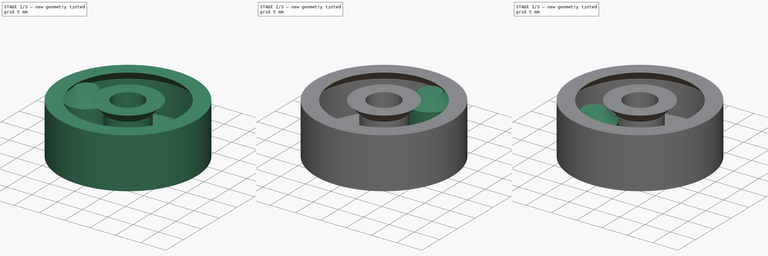
[diagram: build sequence overview — one tinted view per stage of 3, left to right]
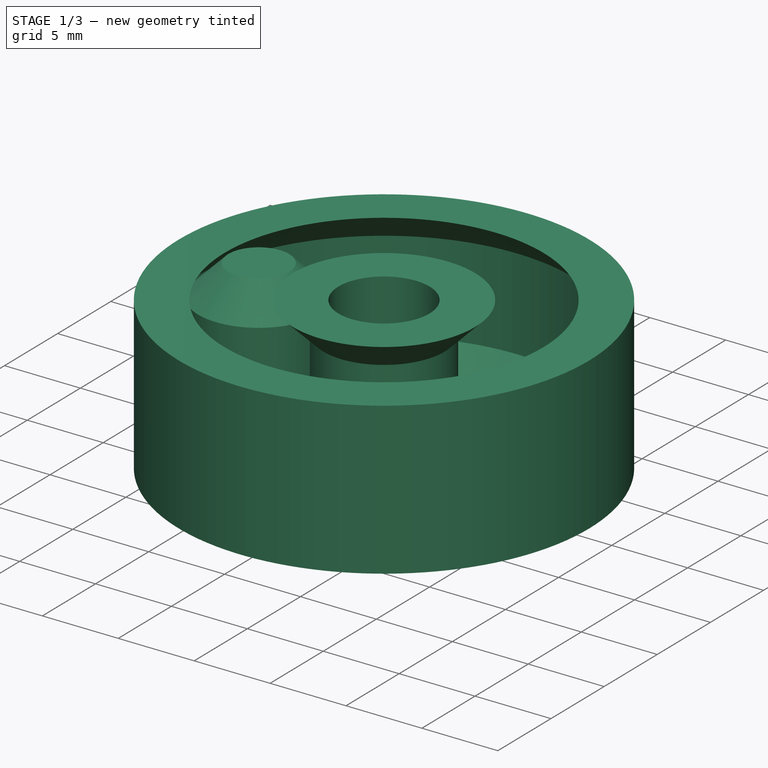
[diagram: stage 1 of 3 — iso view after this stage's code; geometry added in this stage tinted green]
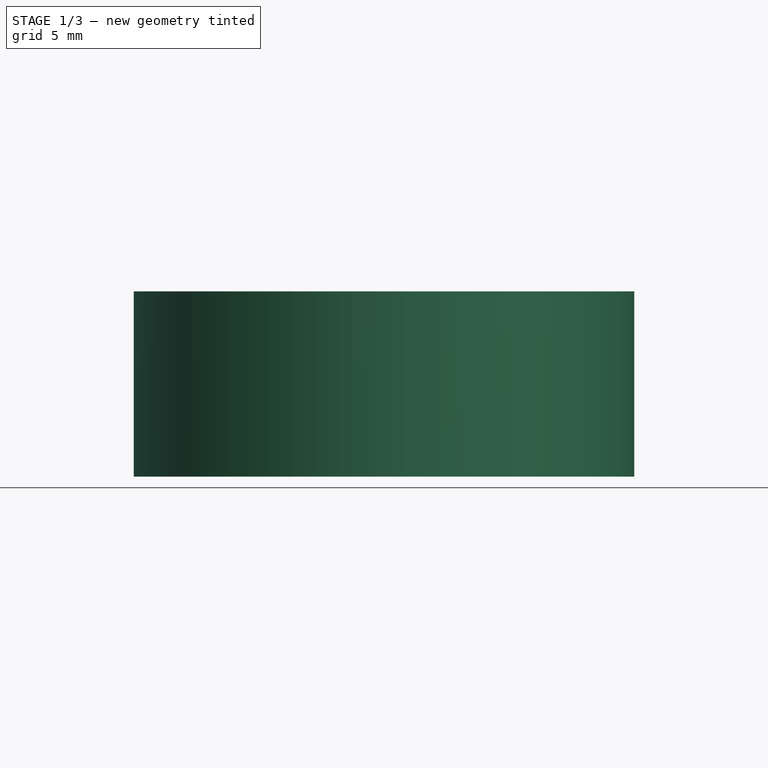
[diagram: stage 1 of 3 — front view after this stage's code; geometry added in this stage tinted green]
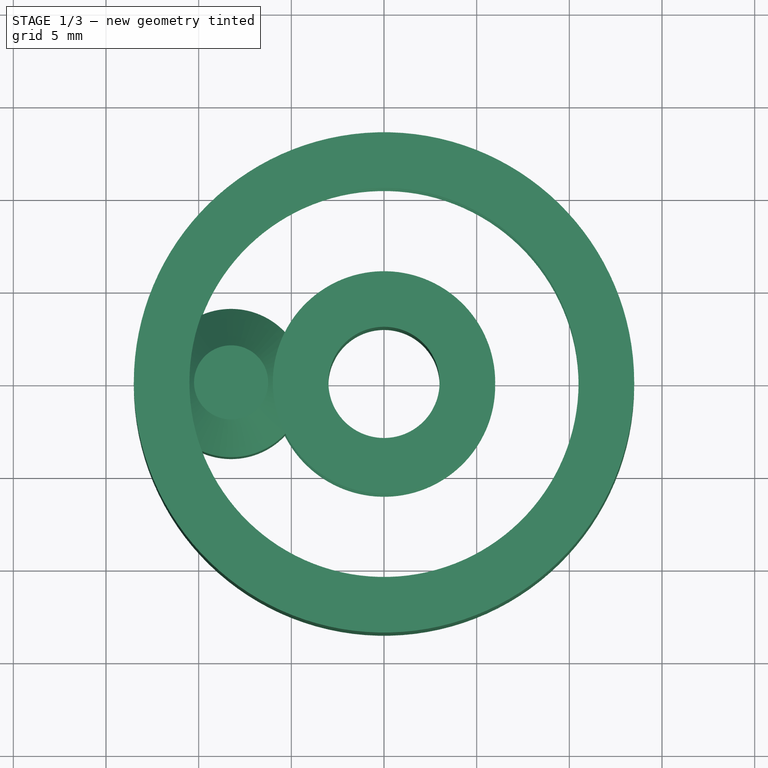
[diagram: stage 1 of 3 — top view after this stage's code; geometry added in this stage tinted green]
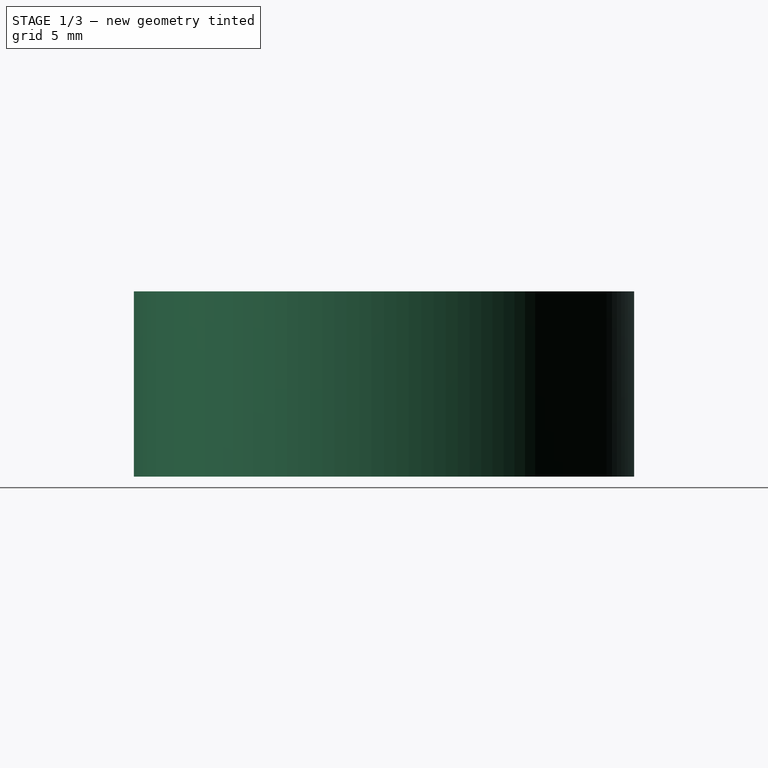
[diagram: stage 1 of 3 — right view after this stage's code; geometry added in this stage tinted green]
FCSTD DOCUMENT  (FreeCAD 0.19R22198 (Git))
Label: Bearing3
License: All rights reserved
LicenseURL: http://en.wikipedia.org/wiki/All_rights_reserved
objects: Part::FeaturePython×5, Sketcher::SketchObject×3, Part::Revolution×3
note: 11 computed .brp shape members not serialized (recipe doc carries the construction recipe); baked Part::Feature solids carry a one-line shape summary decoded from their .brp

FEATURE [Sketcher::SketchObject] Sketch  label="Sketch_OuterRim"
  Placement = pos=(-8.25,0,0) rot=(1,0,0;1.5708rad)
  sketch-geometry (21):
    g0: LineSegment [constr] StartX=0 StartY=5 StartZ=0 EndX=-2 EndY=5 EndZ=0
    g1: LineSegment [constr] StartX=-2 StartY=5 StartZ=0 EndX=-4 EndY=3 EndZ=0
    g2: LineSegment [constr] StartX=-4 StartY=3 StartZ=0 EndX=-4 EndY=-3 EndZ=0
    g3: LineSegment [constr] StartX=-4 StartY=-3 StartZ=0 EndX=-2 EndY=-5 EndZ=0
    g4: LineSegment [constr] StartX=-2 StartY=-5 StartZ=0 EndX=0 EndY=-5 EndZ=0
    g5: LineSegment [constr] StartX=0 StartY=-5 StartZ=0 EndX=0 EndY=5 EndZ=0
    g6: LineSegment StartX=-2.25 StartY=5 StartZ=0 EndX=-4.25 EndY=3 EndZ=0
    g7: LineSegment StartX=-4.25 StartY=3 StartZ=0 EndX=-4.25 EndY=-3 EndZ=0
    g8: LineSegment StartX=-4.25 StartY=-3 StartZ=0 EndX=-2.25 EndY=-5 EndZ=0
    g9: LineSegment StartX=-2.25 StartY=-5 StartZ=0 EndX=-5.25 EndY=-5 EndZ=0
    g10: LineSegment StartX=-5.25 StartY=-5 StartZ=0 EndX=-5.25 EndY=5 EndZ=0
    g11: LineSegment StartX=-5.25 StartY=5 StartZ=0 EndX=-2.25 EndY=5 EndZ=0
    g12: LineSegment [constr] StartX=-20.6299 StartY=5 StartZ=0 EndX=4.28967 EndY=5 EndZ=0
    g13: LineSegment [constr] StartX=-20.9449 StartY=3 StartZ=0 EndX=4.36043 EndY=3 EndZ=0
    g14: LineSegment [constr] StartX=-21.2598 StartY=-5 StartZ=0 EndX=4.56693 EndY=-5 EndZ=0
    g15: LineSegment [constr] StartX=-20.465 StartY=-3 StartZ=0 EndX=4.24868 EndY=-3 EndZ=0
    g16: LineSegment [constr] StartX=-2 StartY=5.74327 StartZ=0 EndX=-2 EndY=-9.43483 EndZ=0
    g17: LineSegment [constr] StartX=-4 StartY=5.8012 StartZ=0 EndX=-4 EndY=-9.99999 EndZ=0
    g18: LineSegment [constr] StartX=-4.25 StartY=5.77485 StartZ=0 EndX=-4.25 EndY=-8.41894 EndZ=0
    g19: LineSegment [constr] StartX=-2.25 StartY=5.80513 StartZ=0 EndX=-2.25 EndY=-7.81692 EndZ=0
    g20: LineSegment [constr] StartX=-5.25 StartY=6.2109 StartZ=0 EndX=-5.25 EndY=-6.55956 EndZ=0
  constraints (54):
    c: PointOnObject(g0,g-2)
    c: Horizontal(g0)
    c: Coincident(g0,g1)
    c: Coincident(g1,g2)
    c: Vertical(g2)
    c: Coincident(g2,g3)
    c: Coincident(g3,g4)
    c: Horizontal(g4)
    c: Coincident(g4,g5)
    c: Coincident(g5,g0)
    c: Vertical(g5)
    c: Coincident(g6,g7)
    c: Vertical(g7)
    c: Coincident(g7,g8)
    c: Coincident(g8,g9)
    c: Horizontal(g9)
    c: Coincident(g9,g10)
    c: Vertical(g10)
    c: Coincident(g10,g11)
    c: Coincident(g11,g6)
    c: Horizontal(g12)
    c: Horizontal(g13)
    c: Horizontal(g14)
    c: Horizontal(g15)
    c: Vertical(g16)
    c: Vertical(g17)
    c: Vertical(g18)
    c: Vertical(g19)
    c: Vertical(g20)
    c: DistanceX(g-2,g16) = -2
    c: DistanceX(g-2,g17) = -4
    c: DistanceY(g-1,g13) = 3
    c: DistanceY(g-1,g12) = 5
    c: Distance(g19,g16) = 0.25
    c: DistanceY(g-1,g15) = -3
    c: DistanceY(g-1,g14) = -5
    c: Distance(g18,g17) = 0.25
    c: Distance(g20,g18) = 1
    c: Horizontal(g11)
    c: PointOnObject(g3,g14)
    c: PointOnObject(g3,g16)
    c: PointOnObject(g8,g19)
    c: PointOnObject(g8,g14)
    c: PointOnObject(g9,g20)
    c: PointOnObject(g2,g15)
    c: PointOnObject(g2,g17)
    c: PointOnObject(g7,g15)
    c: PointOnObject(g7,g18)
    c: PointOnObject(g6,g13)
    c: PointOnObject(g1,g13)
    c: PointOnObject(g0,g16)
    c: PointOnObject(g0,g12)
    c: PointOnObject(g6,g19)
    c: PointOnObject(g6,g12)
FEATURE [Sketcher::SketchObject] Sketch001  label="Sketch_Bearing"
  Placement = pos=(0,0,0) rot=(1,0,0;1.5708rad)
  sketch-geometry (21):
    g0: LineSegment StartX=0 StartY=5 StartZ=0 EndX=-2 EndY=5 EndZ=0
    g1: LineSegment StartX=-2 StartY=5 StartZ=0 EndX=-4 EndY=3 EndZ=0
    g2: LineSegment StartX=-4 StartY=3 StartZ=0 EndX=-4 EndY=-3 EndZ=0
    g3: LineSegment StartX=-4 StartY=-3 StartZ=0 EndX=-2 EndY=-5 EndZ=0
    g4: LineSegment StartX=-2 StartY=-5 StartZ=0 EndX=0 EndY=-5 EndZ=0
    g5: LineSegment StartX=0 StartY=-5 StartZ=0 EndX=0 EndY=5 EndZ=0
    g6: LineSegment [constr] StartX=-2.25 StartY=5 StartZ=0 EndX=-4.25 EndY=3 EndZ=0
    g7: LineSegment [constr] StartX=-4.25 StartY=3 StartZ=0 EndX=-4.25 EndY=-3 EndZ=0
    g8: LineSegment [constr] StartX=-4.25 StartY=-3 StartZ=0 EndX=-2.25 EndY=-5 EndZ=0
    g9: LineSegment [constr] StartX=-2.25 StartY=-5 StartZ=0 EndX=-5.25 EndY=-5 EndZ=0
    g10: LineSegment [constr] StartX=-5.25 StartY=-5 StartZ=0 EndX=-5.25 EndY=5 EndZ=0
    g11: LineSegment [constr] StartX=-5.25 StartY=5 StartZ=0 EndX=-2.25 EndY=5 EndZ=0
    g12: LineSegment [constr] StartX=-20.6299 StartY=5 StartZ=0 EndX=4.28967 EndY=5 EndZ=0
    g13: LineSegment [constr] StartX=-20.9449 StartY=3 StartZ=0 EndX=4.36043 EndY=3 EndZ=0
    g14: LineSegment [constr] StartX=-21.2598 StartY=-5 StartZ=0 EndX=4.56693 EndY=-5 EndZ=0
    g15: LineSegment [constr] StartX=-20.465 StartY=-3 StartZ=0 EndX=4.24868 EndY=-3 EndZ=0
    g16: LineSegment [constr] StartX=-2 StartY=5.74327 StartZ=0 EndX=-2 EndY=-9.43483 EndZ=0
    g17: LineSegment [constr] StartX=-4 StartY=5.8012 StartZ=0 EndX=-4 EndY=-9.99999 EndZ=0
    g18: LineSegment [constr] StartX=-4.25 StartY=5.77485 StartZ=0 EndX=-4.25 EndY=-8.41894 EndZ=0
    g19: LineSegment [constr] StartX=-2.25 StartY=5.80513 StartZ=0 EndX=-2.25 EndY=-7.81692 EndZ=0
    g20: LineSegment [constr] StartX=-5.25 StartY=6.2109 StartZ=0 EndX=-5.25 EndY=-6.55956 EndZ=0
  constraints (54):
    c: PointOnObject(g0,g-2)
    c: Horizontal(g0)
    c: Coincident(g0,g1)
    c: Coincident(g1,g2)
    c: Vertical(g2)
    c: Coincident(g2,g3)
    c: Coincident(g3,g4)
    c: Horizontal(g4)
    c: Coincident(g4,g5)
    c: Coincident(g5,g0)
    c: Vertical(g5)
    c: Coincident(g6,g7)
    c: Vertical(g7)
    c: Coincident(g7,g8)
    c: Coincident(g8,g9)
    c: Horizontal(g9)
    c: Coincident(g9,g10)
    c: Vertical(g10)
    c: Coincident(g10,g11)
    c: Coincident(g11,g6)
    c: Horizontal(g12)
    c: Horizontal(g13)
    c: Horizontal(g14)
    c: Horizontal(g15)
    c: Vertical(g16)
    c: Vertical(g17)
    c: Vertical(g18)
    c: Vertical(g19)
    c: Vertical(g20)
    c: DistanceX(g-2,g16) = -2
    c: DistanceX(g-2,g17) = -4
    c: DistanceY(g-1,g13) = 3
    c: DistanceY(g-1,g12) = 5
    c: Distance(g19,g16) = 0.25
    c: DistanceY(g-1,g15) = -3
    c: DistanceY(g-1,g14) = -5
    c: Distance(g18,g17) = 0.25
    c: Distance(g20,g18) = 1
    c: Horizontal(g11)
    c: PointOnObject(g3,g14)
    c: PointOnObject(g3,g16)
    c: PointOnObject(g8,g19)
    c: PointOnObject(g8,g14)
    c: PointOnObject(g9,g20)
    c: PointOnObject(g2,g15)
    c: PointOnObject(g2,g17)
    c: PointOnObject(g7,g15)
    c: PointOnObject(g7,g18)
    c: PointOnObject(g6,g13)
    c: PointOnObject(g1,g13)
    c: PointOnObject(g0,g16)
    c: PointOnObject(g0,g12)
    c: PointOnObject(g6,g19)
    c: PointOnObject(g6,g12)
FEATURE [Sketcher::SketchObject] MirroredSketch  label="Sketch_InnerRim"
  Placement = pos=(-8.25,0,0) rot=(1,0,0;1.5708rad)
  sketch-geometry (21):
    g0: LineSegment [constr] StartX=0 StartY=-5 StartZ=0 EndX=2 EndY=-5 EndZ=0
    g1: LineSegment [constr] StartX=2 StartY=-5 StartZ=0 EndX=4 EndY=-3 EndZ=0
    g2: LineSegment [constr] StartX=4 StartY=-3 StartZ=0 EndX=4 EndY=3 EndZ=0
    g3: LineSegment [constr] StartX=4 StartY=3 StartZ=0 EndX=2 EndY=5 EndZ=0
    g4: LineSegment [constr] StartX=2 StartY=5 StartZ=0 EndX=0 EndY=5 EndZ=0
    g5: LineSegment [constr] StartX=0 StartY=5 StartZ=0 EndX=0 EndY=-5 EndZ=0
    g6: LineSegment StartX=2.25 StartY=-5 StartZ=0 EndX=4.25 EndY=-3 EndZ=0
    g7: LineSegment StartX=4.25 StartY=-3 StartZ=0 EndX=4.25 EndY=3 EndZ=0
    g8: LineSegment StartX=4.25 StartY=3 StartZ=0 EndX=2.25 EndY=5 EndZ=0
    g9: LineSegment StartX=2.25 StartY=5 StartZ=0 EndX=5.25 EndY=5 EndZ=0
    g10: LineSegment StartX=5.25 StartY=5 StartZ=0 EndX=5.25 EndY=-5 EndZ=0
    g11: LineSegment StartX=5.25 StartY=-5 StartZ=0 EndX=2.25 EndY=-5 EndZ=0
    g12: LineSegment [constr] StartX=20.6299 StartY=-5 StartZ=0 EndX=-4.28967 EndY=-5 EndZ=0
    g13: LineSegment [constr] StartX=20.9449 StartY=-3 StartZ=0 EndX=-4.36043 EndY=-3 EndZ=0
    g14: LineSegment [constr] StartX=21.2598 StartY=5 StartZ=0 EndX=-4.56693 EndY=5 EndZ=0
    g15: LineSegment [constr] StartX=20.465 StartY=3 StartZ=0 EndX=-4.24868 EndY=3 EndZ=0
    g16: LineSegment [constr] StartX=2 StartY=-5.74327 StartZ=0 EndX=2 EndY=9.43483 EndZ=0
    g17: LineSegment [constr] StartX=4 StartY=-5.8012 StartZ=0 EndX=4 EndY=9.99999 EndZ=0
    g18: LineSegment [constr] StartX=4.25 StartY=-5.77485 StartZ=0 EndX=4.25 EndY=8.41894 EndZ=0
    g19: LineSegment [constr] StartX=2.25 StartY=-5.80513 StartZ=0 EndX=2.25 EndY=7.81692 EndZ=0
    g20: LineSegment [constr] StartX=5.25 StartY=-6.2109 StartZ=0 EndX=5.25 EndY=6.55956 EndZ=0
  constraints (47):
    c: Horizontal(g0)
    c: Coincident(g0,g1)
    c: Coincident(g1,g2)
    c: Vertical(g2)
    c: Coincident(g2,g3)
    c: Coincident(g3,g4)
    c: Horizontal(g4)
    c: Coincident(g4,g5)
    c: Coincident(g5,g0)
    c: Vertical(g5)
    c: Coincident(g6,g7)
    c: Vertical(g7)
    c: Coincident(g7,g8)
    c: Coincident(g8,g9)
    c: Horizontal(g9)
    c: Coincident(g9,g10)
    c: Vertical(g10)
    c: Coincident(g10,g11)
    c: Coincident(g11,g6)
    c: Horizontal(g12)
    c: Horizontal(g13)
    c: Horizontal(g14)
    c: Horizontal(g15)
    c: Vertical(g16)
    c: Vertical(g17)
    c: Vertical(g18)
    c: Vertical(g19)
    c: Vertical(g20)
    c: Distance(g19,g16) = 0.25
    c: Distance(g18,g17) = 0.25
    c: Distance(g20,g18) = 1
    c: Horizontal(g11)
    c: PointOnObject(g3,g14)
    c: PointOnObject(g3,g16)
    c: PointOnObject(g8,g19)
    c: PointOnObject(g8,g14)
    c: PointOnObject(g9,g20)
    c: PointOnObject(g2,g15)
    c: PointOnObject(g2,g17)
    c: PointOnObject(g7,g15)
    c: PointOnObject(g7,g18)
    c: PointOnObject(g6,g13)
    c: PointOnObject(g1,g13)
    c: PointOnObject(g0,g16)
    c: PointOnObject(g0,g12)
    c: PointOnObject(g6,g19)
    c: PointOnObject(g6,g12)
FEATURE [Part::Revolution] Revolve
  Angle = 360
  Axis = (0,0,1)
  Base = (0,0,0)
  FaceMakerClass = Part::FaceMakerBullseye
  Placement = pos=(-8.25,0,0) rot=(0,0,1;0rad)
  Solid = true
  Source = -> Sketch001
  Symmetric = false
FEATURE [Part::Revolution] Revolve001  label="Revolve006"
  Angle = 360
  Axis = (0,0,1)
  Base = (0,0,0)
  FaceMakerClass = Part::FaceMakerBullseye
  Solid = true
  Source = -> Sketch
  Symmetric = false
FEATURE [Part::Revolution] Revolve002  label="Revolve007"
  Angle = 360
  Axis = (0,0,1)
  Base = (0,0,0)
  FaceMakerClass = Part::FaceMakerBullseye
  Solid = true
  Source = -> MirroredSketch
  Symmetric = false
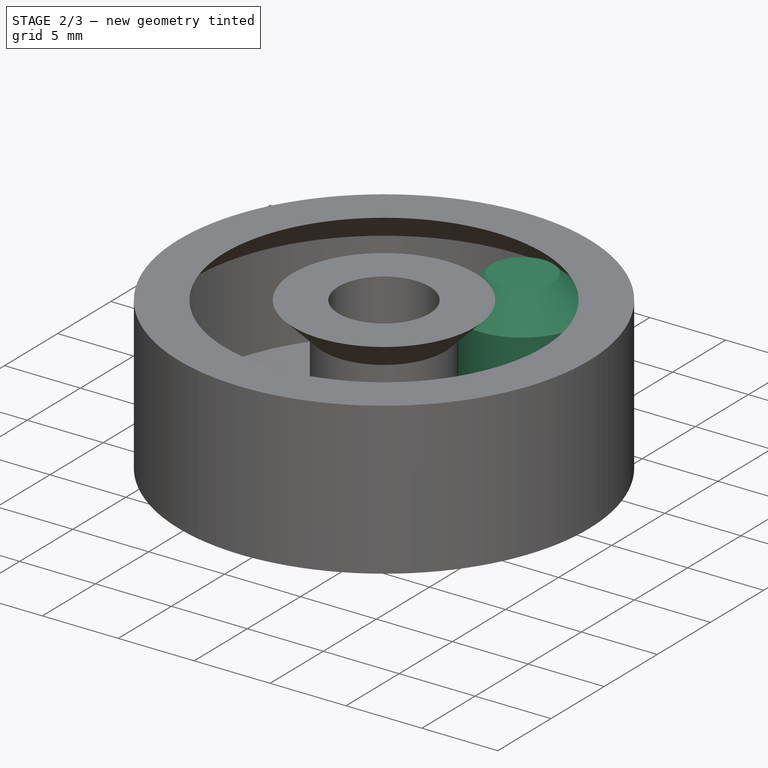
[diagram: stage 2 of 3 — iso view after this stage's code; geometry added in this stage tinted green]
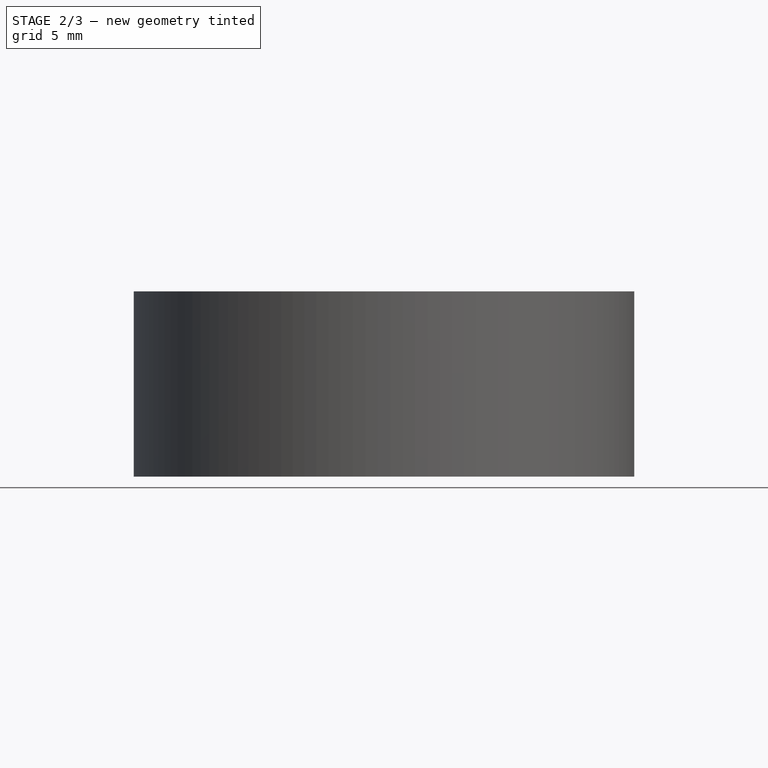
[diagram: stage 2 of 3 — front view after this stage's code; geometry added in this stage tinted green]
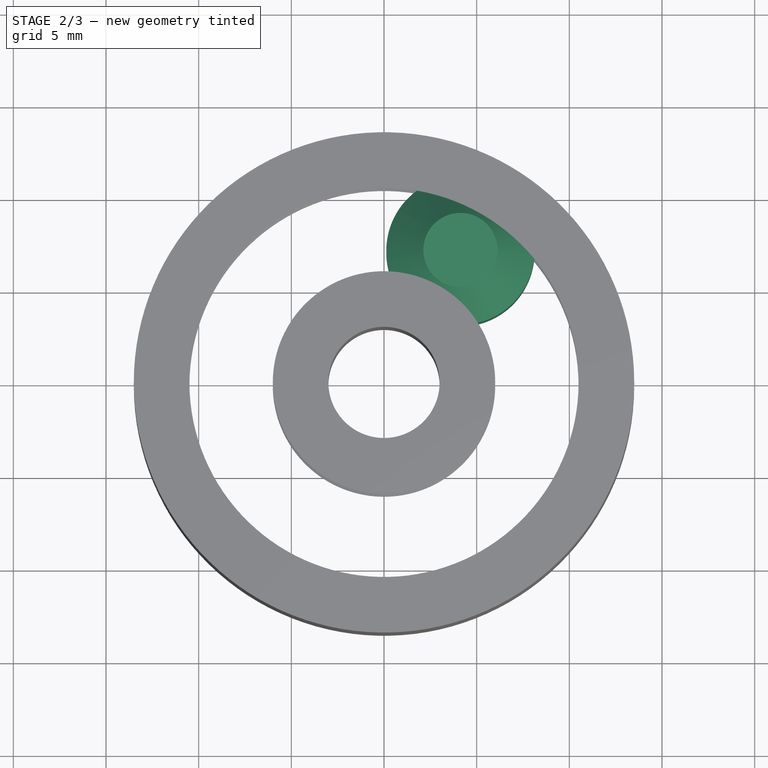
[diagram: stage 2 of 3 — top view after this stage's code; geometry added in this stage tinted green]
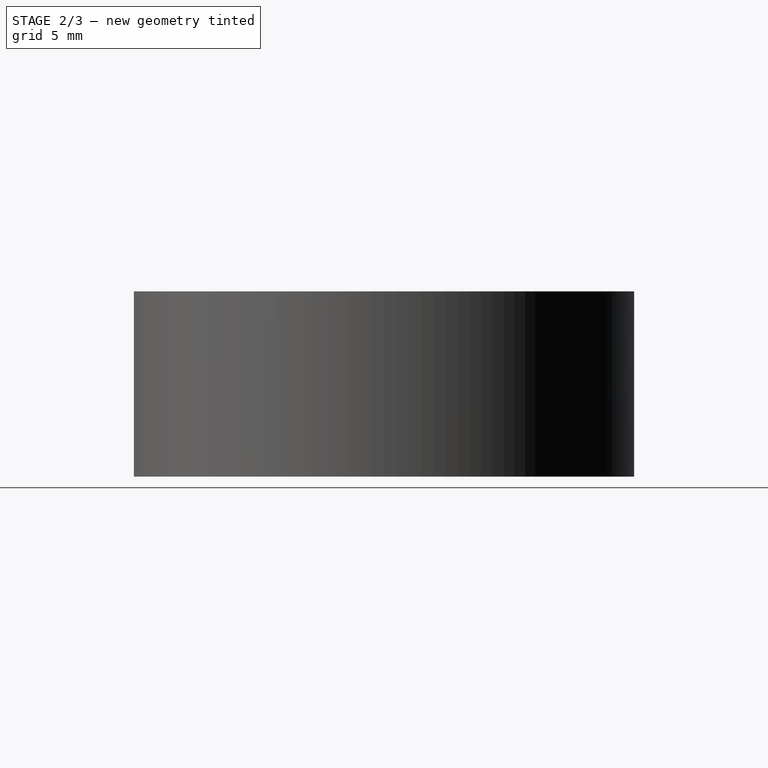
[diagram: stage 2 of 3 — right view after this stage's code; geometry added in this stage tinted green]
FEATURE [Part::FeaturePython] Clone  label="Revolve001"  # Draft clone (typed FeaturePython)
  AttacherType = Attacher::AttachEngine3D
  Fuse = false
  Objects = -> [Revolve]
  Placement = pos=(-4.125,7.14471,0) rot=(0,0,-1;1.0472rad)
  Scale = (1,1,1)
FEATURE [Part::FeaturePython] Clone001  label="Revolve002"  # Draft clone (typed FeaturePython)
  AttacherType = Attacher::AttachEngine3D
  Fuse = false
  Objects = -> [Clone]
  Placement = pos=(4.125,7.14471,0) rot=(0,0,-1;2.0944rad)
  Scale = (1,1,1)
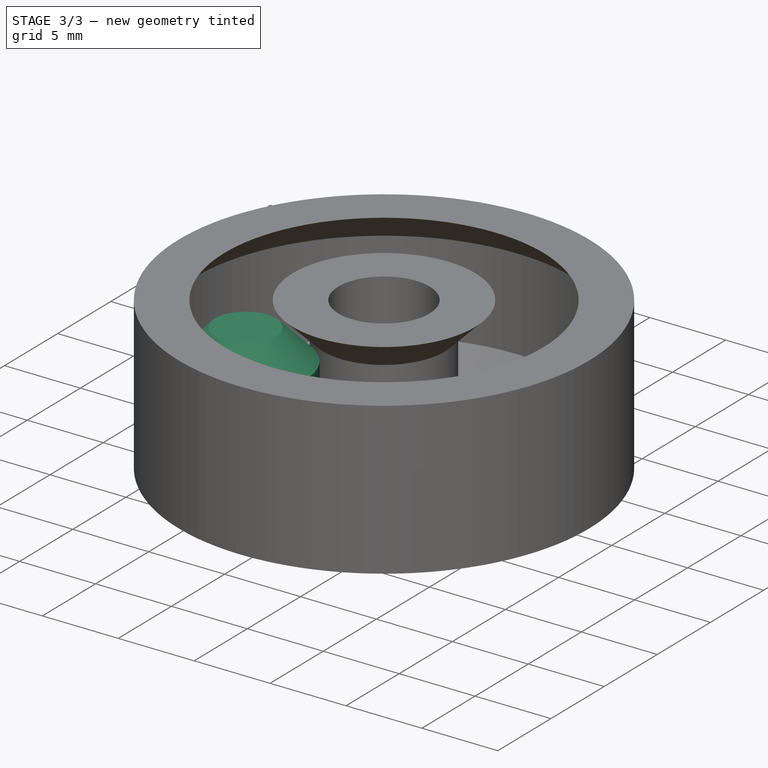
[diagram: stage 3 of 3 — iso view after this stage's code; geometry added in this stage tinted green]
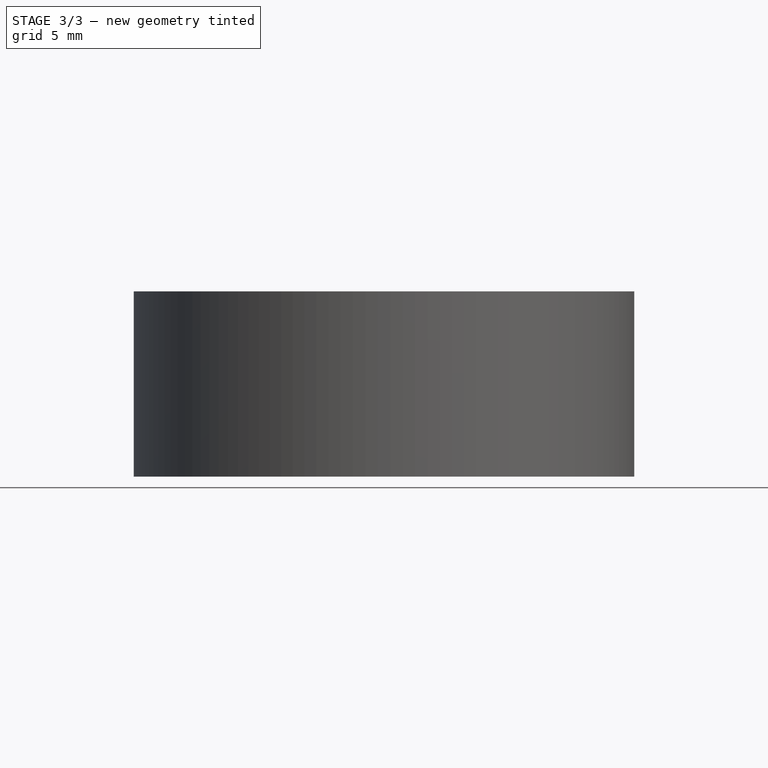
[diagram: stage 3 of 3 — front view after this stage's code; geometry added in this stage tinted green]
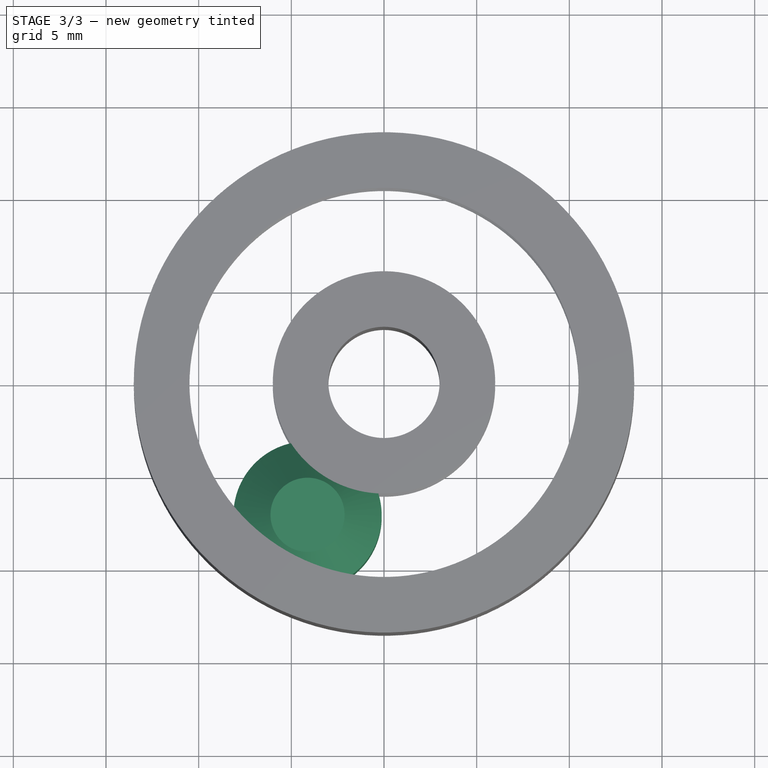
[diagram: stage 3 of 3 — top view after this stage's code; geometry added in this stage tinted green]
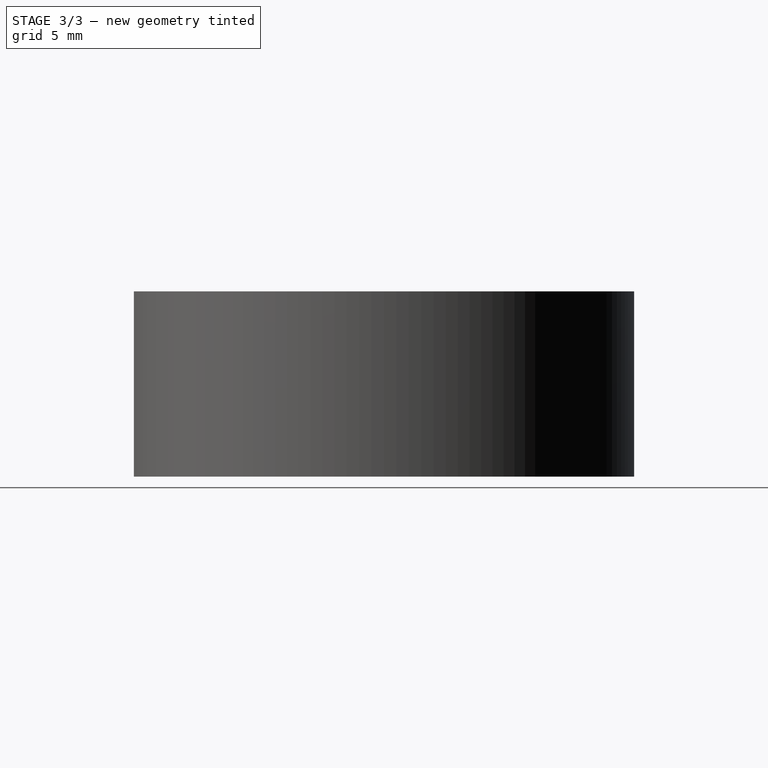
[diagram: stage 3 of 3 — right view after this stage's code; geometry added in this stage tinted green]
FEATURE [Part::FeaturePython] Clone002  label="Revolve003"  # Draft clone (typed FeaturePython)
  AttacherType = Attacher::AttachEngine3D
  Fuse = false
  Objects = -> [Clone001]
  Placement = pos=(8.25,-5e-16,0) rot=(0,0,1;3.14159rad)
  Scale = (1,1,1)
FEATURE [Part::FeaturePython] Clone003  label="Revolve004"  # Draft clone (typed FeaturePython)
  AttacherType = Attacher::AttachEngine3D
  Fuse = false
  Objects = -> [Clone002]
  Placement = pos=(4.125,-7.14471,0) rot=(0,0,1;2.0944rad)
  Scale = (1,1,1)
FEATURE [Part::FeaturePython] Clone004  label="Revolve005"  # Draft clone (typed FeaturePython)
  AttacherType = Attacher::AttachEngine3D
  Fuse = false
  Objects = -> [Clone003]
  Placement = pos=(-4.125,-7.14471,0) rot=(0,0,1;1.0472rad)
  Scale = (1,1,1)
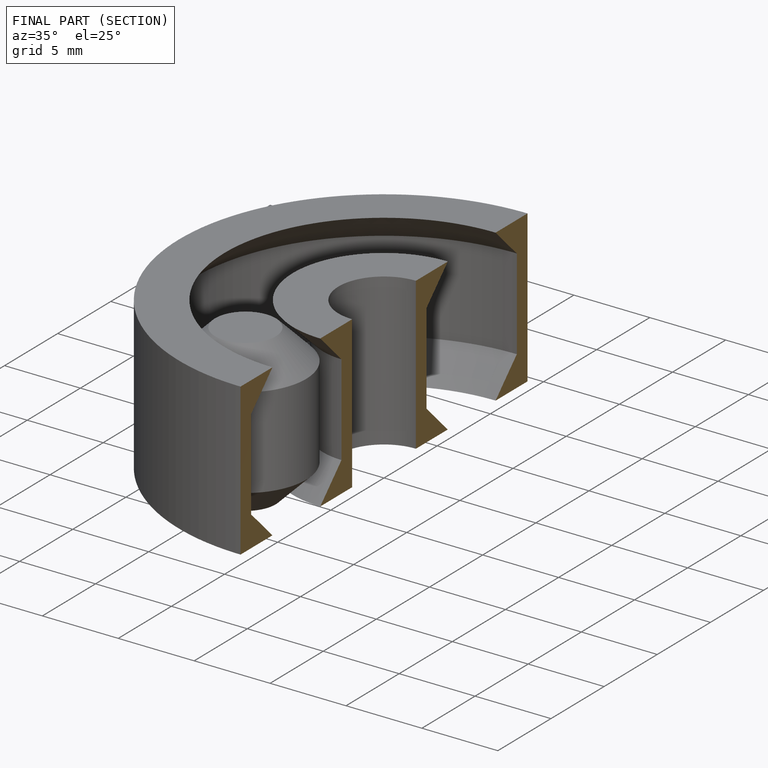
[diagram: finished part — half-section view (interior)]
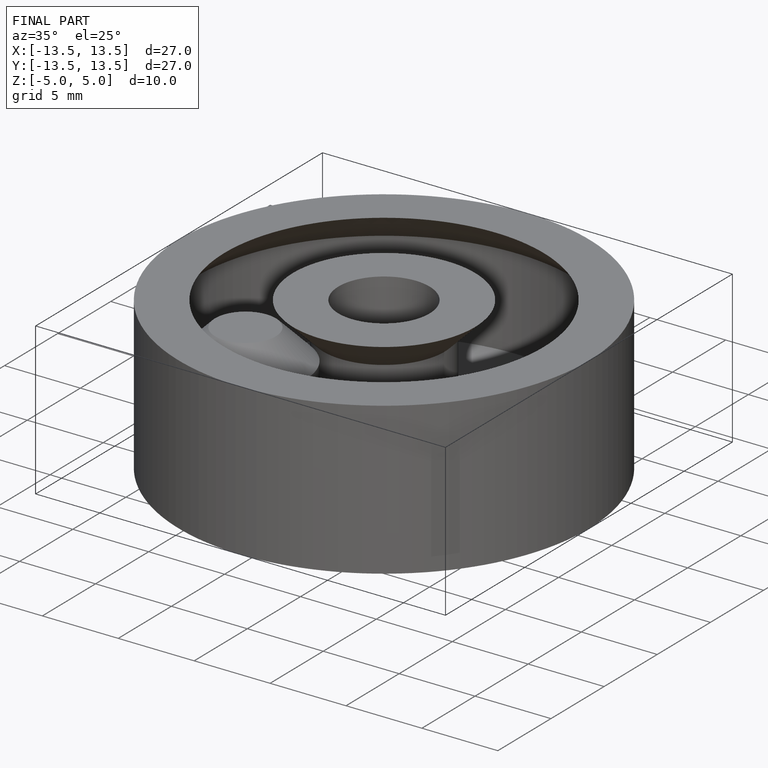
[diagram: finished part — iso view with bounding-box wireframe]
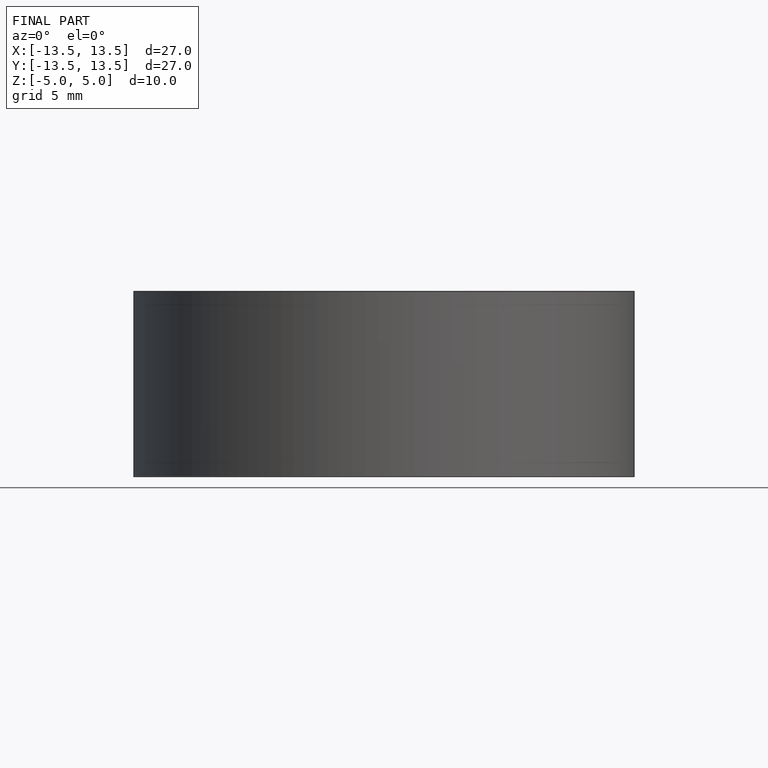
[diagram: finished part — front view with bounding-box wireframe]
